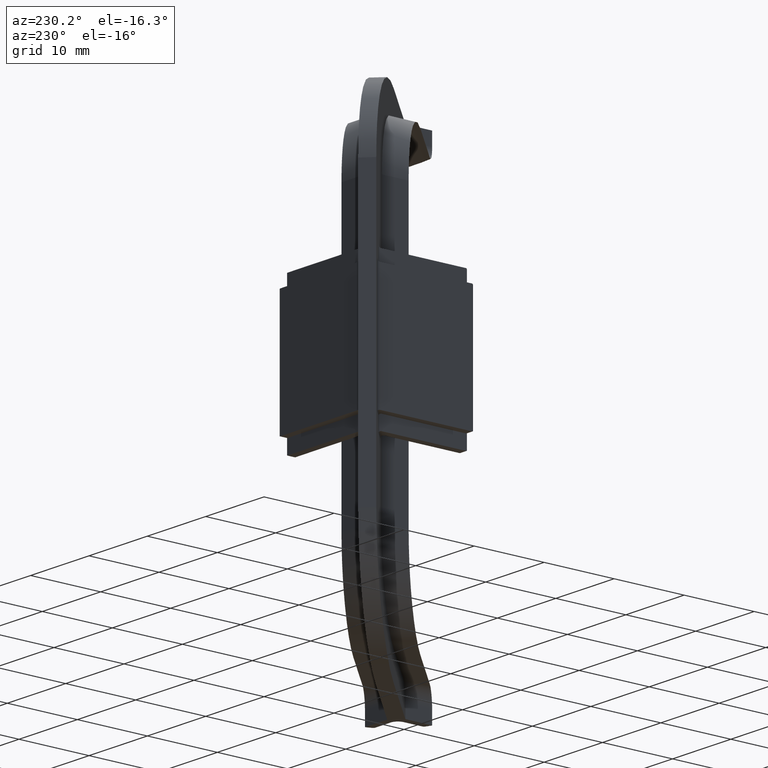
[diagram: clean part render]
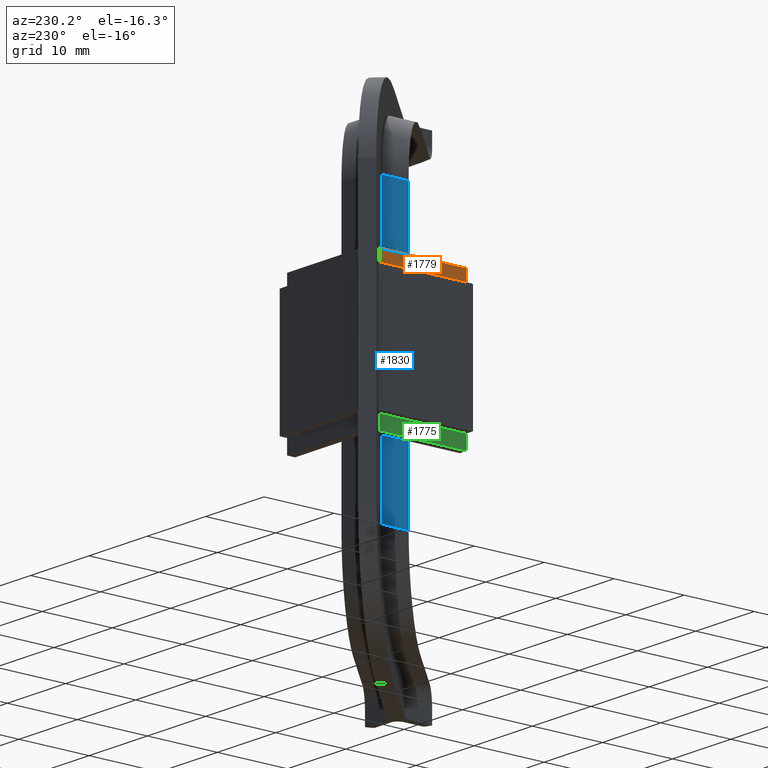
[diagram: same view with three faces highlighted in distinct colors, each labeled with its STEP entity id]
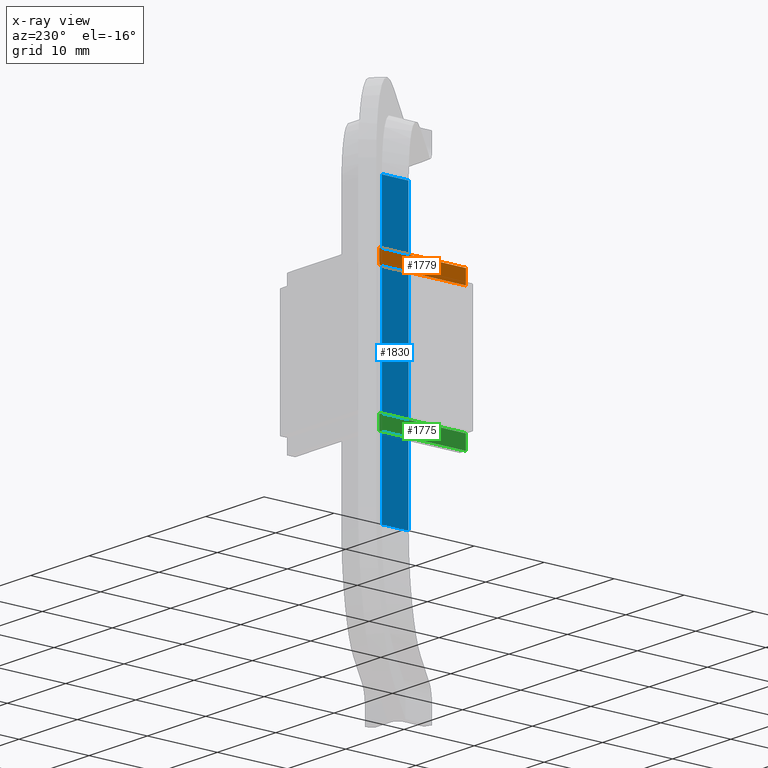
[diagram: x-ray of the same camera — body ghosted, the three highlighted faces saturated]
A machine part, auxiliary view with three faces highlighted in distinct colors.
The next image is the same camera in x-ray (body ghosted, the three faces saturated) — at least one of them is partly hidden behind the body in this view.
Their STEP definitions:

[orange] entity #1779 — the highlighted planar face has unit normal (-1, 0, 0).
#39=ELLIPSE('',#1940,0.424264068711929,0.3);
#43=ELLIPSE('',#1946,0.424264068711929,0.3);
#89=PLANE('',#1955);
#206=FACE_OUTER_BOUND('',#313,.T.);
#313=EDGE_LOOP('',(#1398,#1399,#1400,#1401,#1402,#1403));
#433=LINE('',#3237,#578);
#448=LINE('',#3276,#593);
#450=LINE('',#3280,#595);
#451=LINE('',#3281,#596);
#578=VECTOR('',#2278,10.);
#593=VECTOR('',#2317,10.);
#595=VECTOR('',#2321,10.);
#596=VECTOR('',#2322,10.);
#798=VERTEX_POINT('',#3219);
#799=VERTEX_POINT('',#3221);
#802=VERTEX_POINT('',#3236);
#804=VERTEX_POINT('',#3242);
#814=VERTEX_POINT('',#3275);
#815=VERTEX_POINT('',#3279);
#1003=EDGE_CURVE('',#799,#798,#39,.T.);
#1007=EDGE_CURVE('',#799,#802,#433,.T.);
#1013=EDGE_CURVE('',#802,#804,#43,.T.);
#1027=EDGE_CURVE('',#814,#804,#448,.T.);
#1029=EDGE_CURVE('',#815,#798,#450,.T.);
#1030=EDGE_CURVE('',#814,#815,#451,.T.);
#1398=ORIENTED_EDGE('',*,*,#1007,.F.);
#1399=ORIENTED_EDGE('',*,*,#1003,.T.);
#1400=ORIENTED_EDGE('',*,*,#1029,.F.);
#1401=ORIENTED_EDGE('',*,*,#1030,.F.);
#1402=ORIENTED_EDGE('',*,*,#1027,.T.);
#1403=ORIENTED_EDGE('',*,*,#1013,.F.);
#1779=ADVANCED_FACE('',(#206),#89,.T.);
#1940=AXIS2_PLACEMENT_3D('',#3222,#2271,#2272);
#1946=AXIS2_PLACEMENT_3D('',#3248,#2288,#2289);
#1955=AXIS2_PLACEMENT_3D('',#3278,#2319,#2320);
#2271=DIRECTION('center_axis',(-1.,0.,4.93432455388958E-16));
#2272=DIRECTION('ref_axis',(2.89120579329444E-17,1.,-8.17756488897799E-17));
#2278=DIRECTION('',(4.93432455388958E-16,-5.48943606620216E-16,1.));
#2288=DIRECTION('center_axis',(-1.,0.,4.93432455388958E-16));
#2289=DIRECTION('ref_axis',(-1.23473323221491E-30,1.,4.088782444489E-17));
#2317=DIRECTION('',(0.,1.,0.));
#2319=DIRECTION('center_axis',(-1.,0.,4.93432455388958E-16));
#2320=DIRECTION('ref_axis',(4.93432455388958E-16,0.,1.));
#2321=DIRECTION('',(0.,1.,0.));
#2322=DIRECTION('',(-4.93432455388958E-16,0.,-1.));
#3219=CARTESIAN_POINT('',(-2.95,52.3441125496954,8.45000000000002));
#3221=CARTESIAN_POINT('',(-2.94999999999999,52.6441125496954,8.53786796564405));
#3222=CARTESIAN_POINT('Origin',(-2.95,52.3441125496954,8.75000000000002));
#3236=CARTESIAN_POINT('',(-2.94999999999999,52.6441125496954,10.5378679656441));
#3237=CARTESIAN_POINT('',(-2.94999999999999,52.6441125496954,25.0214771252611));
#3242=CARTESIAN_POINT('',(-2.95,52.3441125496954,10.45));
#3248=CARTESIAN_POINT('Origin',(-2.95,52.3441125496954,10.75));
#3275=CARTESIAN_POINT('',(-2.95,40.3,10.45));
#3276=CARTESIAN_POINT('',(-2.95,-50.,10.45));
#3278=CARTESIAN_POINT('Origin',(-2.95,-50.,10.45));
#3279=CARTESIAN_POINT('',(-2.95,40.3,8.45000000000002));
#3280=CARTESIAN_POINT('',(-2.95,-50.,8.45000000000002));
#3281=CARTESIAN_POINT('',(-2.95,40.3,5.22500000000002));

[blue] entity #1830 — the highlighted planar face has unit normal (-1, -0, 0).
#107=PLANE('',#2037);
#257=FACE_OUTER_BOUND('',#366,.T.);
#366=EDGE_LOOP('',(#1657,#1658,#1659,#1660));
#502=LINE('',#3469,#647);
#509=LINE('',#3493,#654);
#511=LINE('',#3502,#656);
#514=LINE('',#3605,#659);
#647=VECTOR('',#2499,10.);
#654=VECTOR('',#2516,10.);
#656=VECTOR('',#2530,10.);
#659=VECTOR('',#2549,10.);
#856=VERTEX_POINT('',#3459);
#857=VERTEX_POINT('',#3467);
#862=VERTEX_POINT('',#3485);
#863=VERTEX_POINT('',#3492);
#1111=EDGE_CURVE('',#857,#856,#502,.T.);
#1120=EDGE_CURVE('',#863,#862,#509,.T.);
#1125=EDGE_CURVE('',#857,#863,#511,.T.);
#1135=EDGE_CURVE('',#856,#862,#514,.T.);
#1657=ORIENTED_EDGE('',*,*,#1120,.T.);
#1658=ORIENTED_EDGE('',*,*,#1135,.F.);
#1659=ORIENTED_EDGE('',*,*,#1111,.F.);
#1660=ORIENTED_EDGE('',*,*,#1125,.T.);
#1830=ADVANCED_FACE('',(#257),#107,.T.);
#2037=AXIS2_PLACEMENT_3D('',#3604,#2547,#2548);
#2499=DIRECTION('',(2.22044604925031E-16,-1.,1.63785376900147E-16));
#2516=DIRECTION('',(2.22044604925031E-16,-1.,1.63785376900147E-16));
#2530=DIRECTION('',(0.,0.,-1.));
#2547=DIRECTION('center_axis',(-1.,-2.22044604925031E-16,0.));
#2548=DIRECTION('ref_axis',(0.,0.,1.));
#2549=DIRECTION('',(0.,0.,-1.));
#3459=CARTESIAN_POINT('',(-0.0999999999999912,46.1,20.));
#3467=CARTESIAN_POINT('',(-0.0999999999999912,49.9183766184074,20.));
#3469=CARTESIAN_POINT('',(-0.0999999999999912,49.9183766184074,20.));
#3485=CARTESIAN_POINT('',(-0.0999999999999912,46.1,-20.));
#3492=CARTESIAN_POINT('',(-0.0999999999999912,49.9183766184074,-20.));
#3493=CARTESIAN_POINT('',(-0.099999999999989,49.9183766184074,-20.));
#3502=CARTESIAN_POINT('',(-0.0999999999999912,49.9183766184074,20.));
#3604=CARTESIAN_POINT('Origin',(-0.0999999999999912,49.9183766184074,20.));
#3605=CARTESIAN_POINT('',(-0.0999999999999912,46.1,20.));

[green] entity #1775 — the highlighted planar face has unit normal (-1, 0, -0).
#33=ELLIPSE('',#1931,0.424264068711929,0.3);
#36=ELLIPSE('',#1936,0.424264068711929,0.3);
#85=PLANE('',#1951);
#202=FACE_OUTER_BOUND('',#309,.T.);
#309=EDGE_LOOP('',(#1378,#1379,#1380,#1381,#1382,#1383));
#428=LINE('',#3206,#573);
#439=LINE('',#3258,#584);
#442=LINE('',#3264,#587);
#443=LINE('',#3265,#588);
#573=VECTOR('',#2257,10.);
#584=VECTOR('',#2300,10.);
#587=VECTOR('',#2305,10.);
#588=VECTOR('',#2306,10.);
#788=VERTEX_POINT('',#3194);
#789=VERTEX_POINT('',#3196);
#792=VERTEX_POINT('',#3204);
#794=VERTEX_POINT('',#3209);
#809=VERTEX_POINT('',#3257);
#811=VERTEX_POINT('',#3263);
#991=EDGE_CURVE('',#789,#788,#33,.T.);
#996=EDGE_CURVE('',#792,#788,#428,.T.);
#998=EDGE_CURVE('',#794,#792,#36,.T.);
#1018=EDGE_CURVE('',#809,#789,#439,.T.);
#1021=EDGE_CURVE('',#811,#794,#442,.T.);
#1022=EDGE_CURVE('',#809,#811,#443,.T.);
#1378=ORIENTED_EDGE('',*,*,#991,.T.);
#1379=ORIENTED_EDGE('',*,*,#996,.F.);
#1380=ORIENTED_EDGE('',*,*,#998,.F.);
#1381=ORIENTED_EDGE('',*,*,#1021,.F.);
#1382=ORIENTED_EDGE('',*,*,#1022,.F.);
#1383=ORIENTED_EDGE('',*,*,#1018,.T.);
#1775=ADVANCED_FACE('',(#202),#85,.T.);
#1931=AXIS2_PLACEMENT_3D('',#3197,#2247,#2248);
#1936=AXIS2_PLACEMENT_3D('',#3211,#2261,#2262);
#1951=AXIS2_PLACEMENT_3D('',#3262,#2303,#2304);
#2247=DIRECTION('center_axis',(-1.,0.,-6.16790569236197E-16));
#2248=DIRECTION('ref_axis',(-5.55629954496709E-30,1.,1.2266347333467E-15));
#2257=DIRECTION('',(-6.16790569236197E-16,5.61279418004939E-16,1.));
#2261=DIRECTION('center_axis',(-1.,0.,-6.16790569236197E-16));
#2262=DIRECTION('ref_axis',(-5.55629954496709E-30,1.,1.2266347333467E-15));
#2300=DIRECTION('',(0.,1.,0.));
#2303=DIRECTION('center_axis',(-1.,0.,-6.16790569236197E-16));
#2304=DIRECTION('ref_axis',(-6.16790569236197E-16,0.,1.));
#2305=DIRECTION('',(0.,1.,0.));
#2306=DIRECTION('',(6.16790569236197E-16,0.,-1.));
#3194=CARTESIAN_POINT('',(-2.95,52.6441125496954,-8.53786796564402));
#3196=CARTESIAN_POINT('',(-2.95000000000001,52.3441125496954,-8.44999999999998));
#3197=CARTESIAN_POINT('Origin',(-2.95000000000001,52.3441125496954,-8.74999999999998));
#3204=CARTESIAN_POINT('',(-2.95000000000001,52.6441125496954,-10.537867965644));
#3206=CARTESIAN_POINT('',(-2.95000000000002,52.6441125496954,15.571477125261));
#3209=CARTESIAN_POINT('',(-2.95000000000001,52.3441125496954,-10.45));
#3211=CARTESIAN_POINT('Origin',(-2.95000000000001,52.3441125496954,-10.75));
#3257=CARTESIAN_POINT('',(-2.95000000000001,40.3,-8.44999999999998));
#3258=CARTESIAN_POINT('',(-2.95000000000001,-50.,-8.44999999999998));
#3262=CARTESIAN_POINT('Origin',(-2.95000000000001,-50.,-8.44999999999998));
#3263=CARTESIAN_POINT('',(-2.95000000000001,40.3,-10.45));
#3264=CARTESIAN_POINT('',(-2.95000000000001,-50.,-10.45));
#3265=CARTESIAN_POINT('',(-2.95000000000001,40.3,-4.22499999999998));